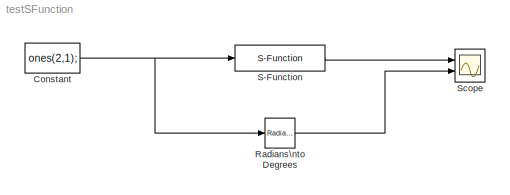
MODEL testSFunction
KIND model
BLOCK [Constant] Constant
  SID = 5
  Value = ones(2,1);
BLOCK [Reference] Radians\nto Degrees  REF=simulink_extras/Transformations/Radians\nto Degrees
  Ports = [1, 1]
  SID = 6
  SourceBlock = simulink_extras/Transformations/Radians\nto Degrees
  SourceType = RadiansToDegrees
BLOCK [S-Function] S-Function
  EnableBusSupport = off
  FunctionName = rad2Deg
  Ports = [1, 1]
  SFunctionDeploymentMode = off
  SID = 1
BLOCK [Scope] Scope
  NumInputPorts = 2
  Ports = [2]
  SID = 2
  ScopeSpecificationString = Simulink.scopes.TimeScopeBlockCfg('CurrentConfiguration', extmgr.ConfigurationSet(extmgr.Configuration('Core','General UI',true),extmgr.Configuration('Core','Source UI',true),extmgr.Configuration('Sources','WiredSimulink',true,'DataLoggingLimitDataPoints',true,'DataLoggingSaveFormat','Array','DataLoggingDecimation','1','DataLoggingDecimateData',true),extmgr.Configuration('Visuals','Time Domain',tr...<+2327ch>
NET Constant:1 -> Radians\nto Degrees:1, S-Function:1
LINE Radians\nto Degrees:1 -> Scope:2
LINE S-Function:1 -> Scope:1
note: NET lines group one-source signal fan-out (src -> all destinations, sorted); 1:1 wires keep LINE
